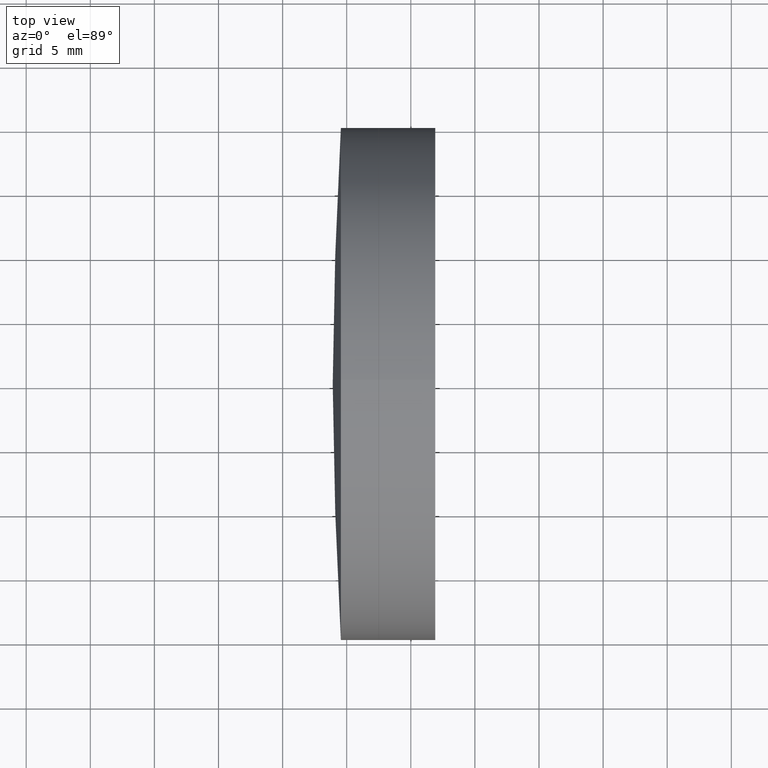
[diagram: clean part render]
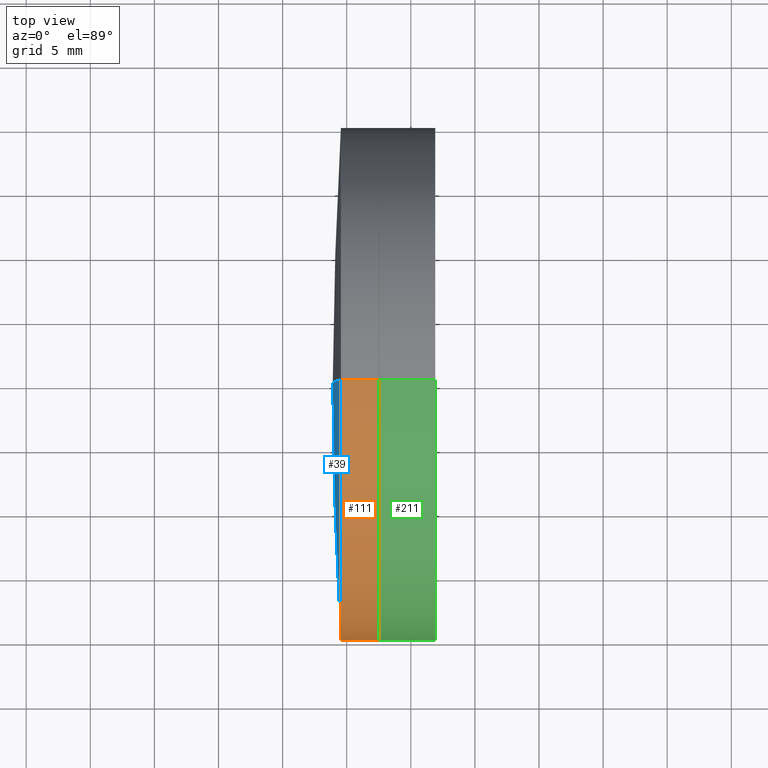
[diagram: same view with three faces highlighted in distinct colors, each labeled with its STEP entity id]
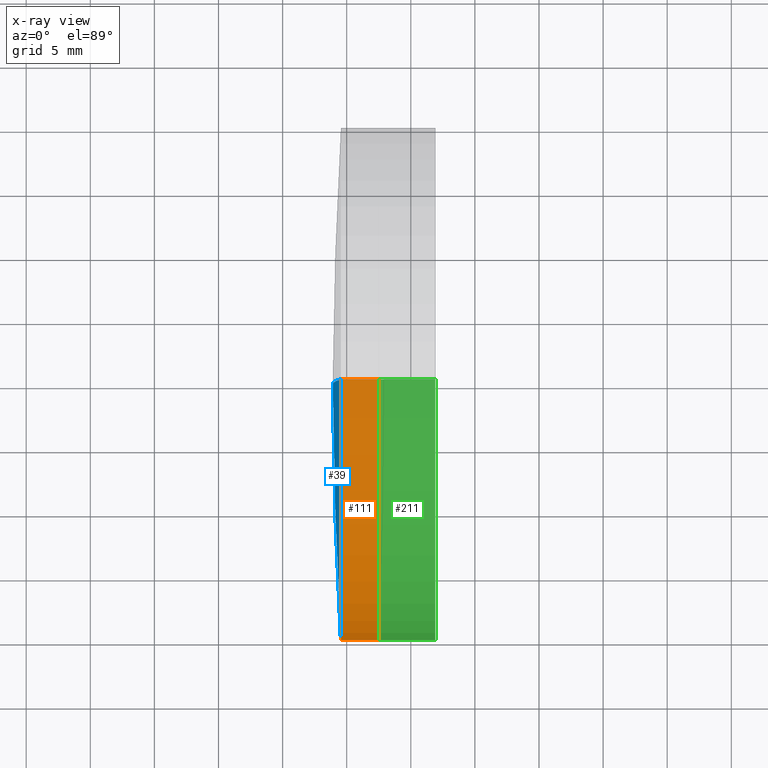
[diagram: x-ray of the same camera — body ghosted, the three highlighted faces saturated]
A machine part, top view with three faces highlighted in distinct colors.
The next image is the same camera in x-ray (body ghosted, the three faces saturated) — at least one of them is partly hidden behind the body in this view.
Their STEP definitions:

[orange] entity #111 — the highlighted cylindrical surface (partial cylindrical patch) has radius 20 mm, axis along (-1, -0, -0).
#2 = LINE ( 'NONE', #231, #249 ) ;
#3 = EDGE_CURVE ( 'NONE', #164, #226, #185, .T. ) ;
#24 = DIRECTION ( 'NONE',  ( 0.0000000000000000000, 0.0000000000000000000, 1.000000000000000000 ) ) ;
#52 = EDGE_CURVE ( 'NONE', #96, #226, #56, .T. ) ;
#56 = CIRCLE ( 'NONE', #318, 19.99999999999986100 ) ;
#59 = DIRECTION ( 'NONE',  ( -1.000000000000000000, -0.0000000000000000000, -0.0000000000000000000 ) ) ;
#60 = CARTESIAN_POINT ( 'NONE',  ( 657.5142120742816600, 0.0000000000000000000, 19.99999999999986500 ) ) ;
#63 = EDGE_CURVE ( 'NONE', #99, #96, #2, .T. ) ;
#68 = ORIENTED_EDGE ( 'NONE', *, *, #52, .F. ) ;
#75 = CARTESIAN_POINT ( 'NONE',  ( 654.5442827078192100, 0.0000000000000000000, 0.0000000000000000000 ) ) ;
#96 = VERTEX_POINT ( 'NONE', #307 ) ;
#99 = VERTEX_POINT ( 'NONE', #265 ) ;
#111 = ADVANCED_FACE ( 'NONE', ( #206 ), #218, .T. ) ;
#112 = DIRECTION ( 'NONE',  ( -1.000000000000000000, -0.0000000000000000000, -0.0000000000000000000 ) ) ;
#118 = CARTESIAN_POINT ( 'NONE',  ( 124.5233095260452400, 0.0000000000000000000, 0.0000000000000000000 ) ) ;
#121 = AXIS2_PLACEMENT_3D ( 'NONE', #118, #59, #175 ) ;
#140 = DIRECTION ( 'NONE',  ( 0.0000000000000000000, 0.0000000000000000000, 1.000000000000000000 ) ) ;
#147 = EDGE_CURVE ( 'NONE', #99, #164, #248, .T. ) ;
#160 = CARTESIAN_POINT ( 'NONE',  ( 657.5142120742816600, 0.0000000000000000000, 0.0000000000000000000 ) ) ;
#164 = VERTEX_POINT ( 'NONE', #60 ) ;
#166 = ORIENTED_EDGE ( 'NONE', *, *, #147, .T. ) ;
#173 = ORIENTED_EDGE ( 'NONE', *, *, #3, .T. ) ;
#175 = DIRECTION ( 'NONE',  ( 0.0000000000000000000, 0.0000000000000000000, 1.000000000000000000 ) ) ;
#185 = LINE ( 'NONE', #261, #221 ) ;
#191 = DIRECTION ( 'NONE',  ( -1.000000000000000000, -0.0000000000000000000, -0.0000000000000000000 ) ) ;
#206 = FACE_OUTER_BOUND ( 'NONE', #294, .T. ) ;
#213 = DIRECTION ( 'NONE',  ( -1.000000000000000000, -0.0000000000000000000, -0.0000000000000000000 ) ) ;
#218 = CYLINDRICAL_SURFACE ( 'NONE', #121, 19.99999999999986500 ) ;
#221 = VECTOR ( 'NONE', #112, 1000.000000000000000 ) ;
#226 = VERTEX_POINT ( 'NONE', #308 ) ;
#231 = CARTESIAN_POINT ( 'NONE',  ( 124.5233095260452400, 2.449293598294689900E-015, -19.99999999999986500 ) ) ;
#248 = CIRCLE ( 'NONE', #250, 19.99999999999986500 ) ;
#249 = VECTOR ( 'NONE', #213, 1000.000000000000000 ) ;
#250 = AXIS2_PLACEMENT_3D ( 'NONE', #160, #191, #24 ) ;
#261 = CARTESIAN_POINT ( 'NONE',  ( 124.5233095260452400, 0.0000000000000000000, 19.99999999999986500 ) ) ;
#265 = CARTESIAN_POINT ( 'NONE',  ( 657.5142120742816600, 2.449293598294689900E-015, -19.99999999999986500 ) ) ;
#294 = EDGE_LOOP ( 'NONE', ( #298, #166, #173, #68 ) ) ;
#298 = ORIENTED_EDGE ( 'NONE', *, *, #63, .F. ) ;
#307 = CARTESIAN_POINT ( 'NONE',  ( 654.5442827078192100, 2.449293598294685600E-015, -19.99999999999996400 ) ) ;
#308 = CARTESIAN_POINT ( 'NONE',  ( 654.5442827078192100, 0.0000000000000000000, 19.99999999999982900 ) ) ;
#313 = DIRECTION ( 'NONE',  ( -1.000000000000000000, -0.0000000000000000000, -0.0000000000000000000 ) ) ;
#318 = AXIS2_PLACEMENT_3D ( 'NONE', #75, #313, #140 ) ;

[blue] entity #39 — the highlighted spherical surface has radius 315.18 mm.
#14 = AXIS2_PLACEMENT_3D ( 'NONE', #284, #108, #310 ) ;
#39 = ADVANCED_FACE ( 'NONE', ( #283 ), #193, .T. ) ;
#52 = EDGE_CURVE ( 'NONE', #96, #226, #56, .T. ) ;
#56 = CIRCLE ( 'NONE', #318, 19.99999999999986100 ) ;
#72 = ORIENTED_EDGE ( 'NONE', *, *, #52, .T. ) ;
#75 = CARTESIAN_POINT ( 'NONE',  ( 654.5442827078192100, 0.0000000000000000000, 0.0000000000000000000 ) ) ;
#79 = ORIENTED_EDGE ( 'NONE', *, *, #94, .T. ) ;
#88 = EDGE_CURVE ( 'NONE', #96, #153, #171, .T. ) ;
#89 = DIRECTION ( 'NONE',  ( 0.0000000000000000000, 0.0000000000000000000, -1.000000000000000000 ) ) ;
#94 = EDGE_CURVE ( 'NONE', #226, #153, #123, .T. ) ;
#96 = VERTEX_POINT ( 'NONE', #307 ) ;
#108 = DIRECTION ( 'NONE',  ( 0.0000000000000000000, 1.000000000000000000, 0.0000000000000000000 ) ) ;
#123 = CIRCLE ( 'NONE', #299, 315.1800000000000600 ) ;
#140 = DIRECTION ( 'NONE',  ( 0.0000000000000000000, 0.0000000000000000000, 1.000000000000000000 ) ) ;
#153 = VERTEX_POINT ( 'NONE', #209 ) ;
#163 = ORIENTED_EDGE ( 'NONE', *, *, #88, .F. ) ;
#171 = CIRCLE ( 'NONE', #252, 315.1800000000000600 ) ;
#187 = DIRECTION ( 'NONE',  ( -0.0000000000000000000, 1.000000000000000000, 1.224646799147353200E-016 ) ) ;
#193 = SPHERICAL_SURFACE ( 'NONE', #14, 315.1800000000000600 ) ;
#209 = CARTESIAN_POINT ( 'NONE',  ( 653.9090846041468700, 0.0000000000000000000, -1.165465373686866100E-013 ) ) ;
#216 = CARTESIAN_POINT ( 'NONE',  ( 969.0890846041469300, 0.0000000000000000000, -1.358457462764497500E-013 ) ) ;
#226 = VERTEX_POINT ( 'NONE', #308 ) ;
#243 = DIRECTION ( 'NONE',  ( 0.0000000000000000000, -1.000000000000000000, 0.0000000000000000000 ) ) ;
#252 = AXIS2_PLACEMENT_3D ( 'NONE', #264, #187, #256 ) ;
#256 = DIRECTION ( 'NONE',  ( 0.0000000000000000000, -1.224646799147353200E-016, 1.000000000000000000 ) ) ;
#264 = CARTESIAN_POINT ( 'NONE',  ( 969.0890846041469300, 0.0000000000000000000, -1.358457462764497500E-013 ) ) ;
#270 = EDGE_LOOP ( 'NONE', ( #163, #72, #79 ) ) ;
#283 = FACE_OUTER_BOUND ( 'NONE', #270, .T. ) ;
#284 = CARTESIAN_POINT ( 'NONE',  ( 969.0890846041469300, 0.0000000000000000000, -1.358457462764497500E-013 ) ) ;
#299 = AXIS2_PLACEMENT_3D ( 'NONE', #216, #243, #89 ) ;
#307 = CARTESIAN_POINT ( 'NONE',  ( 654.5442827078192100, 2.449293598294685600E-015, -19.99999999999996400 ) ) ;
#308 = CARTESIAN_POINT ( 'NONE',  ( 654.5442827078192100, 0.0000000000000000000, 19.99999999999982900 ) ) ;
#310 = DIRECTION ( 'NONE',  ( 0.0000000000000000000, 0.0000000000000000000, 1.000000000000000000 ) ) ;
#313 = DIRECTION ( 'NONE',  ( -1.000000000000000000, -0.0000000000000000000, -0.0000000000000000000 ) ) ;
#318 = AXIS2_PLACEMENT_3D ( 'NONE', #75, #313, #140 ) ;

[green] entity #211 — the highlighted cylindrical surface (partial cylindrical patch) has radius 20 mm, axis along (-1, -0, -0).
#10 = VECTOR ( 'NONE', #281, 1000.000000000000000 ) ;
#11 = DIRECTION ( 'NONE',  ( -1.000000000000000000, -0.0000000000000000000, -0.0000000000000000000 ) ) ;
#16 = ORIENTED_EDGE ( 'NONE', *, *, #130, .F. ) ;
#35 = EDGE_LOOP ( 'NONE', ( #16, #321, #247, #146 ) ) ;
#42 = CIRCLE ( 'NONE', #104, 20.00000000000019500 ) ;
#49 = DIRECTION ( 'NONE',  ( 0.0000000000000000000, 0.0000000000000000000, 1.000000000000000000 ) ) ;
#53 = CARTESIAN_POINT ( 'NONE',  ( -0.5519199926577972300, 0.0000000000000000000, 20.00000000000019500 ) ) ;
#67 = VERTEX_POINT ( 'NONE', #315 ) ;
#90 = CARTESIAN_POINT ( 'NONE',  ( 657.5142120742816600, 2.449293598294727800E-015, -20.00000000000030900 ) ) ;
#91 = DIRECTION ( 'NONE',  ( -1.000000000000000000, -0.0000000000000000000, -0.0000000000000000000 ) ) ;
#92 = DIRECTION ( 'NONE',  ( -1.000000000000000000, -0.0000000000000000000, -0.0000000000000000000 ) ) ;
#101 = CARTESIAN_POINT ( 'NONE',  ( -0.5519199926577972300, 0.0000000000000000000, 0.0000000000000000000 ) ) ;
#104 = AXIS2_PLACEMENT_3D ( 'NONE', #219, #92, #301 ) ;
#113 = CARTESIAN_POINT ( 'NONE',  ( 661.9090846041468700, 0.0000000000000000000, 20.00000000000019500 ) ) ;
#116 = LINE ( 'NONE', #53, #275 ) ;
#120 = EDGE_CURVE ( 'NONE', #184, #290, #116, .T. ) ;
#122 = FACE_OUTER_BOUND ( 'NONE', #35, .T. ) ;
#130 = EDGE_CURVE ( 'NONE', #67, #198, #291, .T. ) ;
#132 = CARTESIAN_POINT ( 'NONE',  ( -0.5519199926577972300, 2.449293598294730200E-015, -20.00000000000019500 ) ) ;
#145 = CYLINDRICAL_SURFACE ( 'NONE', #238, 20.00000000000019500 ) ;
#146 = ORIENTED_EDGE ( 'NONE', *, *, #167, .F. ) ;
#151 = CARTESIAN_POINT ( 'NONE',  ( 661.9090846041468700, 0.0000000000000000000, 0.0000000000000000000 ) ) ;
#167 = EDGE_CURVE ( 'NONE', #198, #290, #42, .T. ) ;
#172 = DIRECTION ( 'NONE',  ( 0.0000000000000000000, 0.0000000000000000000, 1.000000000000000000 ) ) ;
#183 = DIRECTION ( 'NONE',  ( -1.000000000000000000, -0.0000000000000000000, -0.0000000000000000000 ) ) ;
#184 = VERTEX_POINT ( 'NONE', #113 ) ;
#198 = VERTEX_POINT ( 'NONE', #90 ) ;
#199 = AXIS2_PLACEMENT_3D ( 'NONE', #151, #11, #172 ) ;
#207 = CIRCLE ( 'NONE', #199, 20.00000000000019500 ) ;
#211 = ADVANCED_FACE ( 'NONE', ( #122 ), #145, .T. ) ;
#219 = CARTESIAN_POINT ( 'NONE',  ( 657.5142120742816600, 0.0000000000000000000, 0.0000000000000000000 ) ) ;
#238 = AXIS2_PLACEMENT_3D ( 'NONE', #101, #91, #49 ) ;
#247 = ORIENTED_EDGE ( 'NONE', *, *, #120, .T. ) ;
#254 = CARTESIAN_POINT ( 'NONE',  ( 657.5142120742816600, 0.0000000000000000000, 20.00000000000017400 ) ) ;
#272 = EDGE_CURVE ( 'NONE', #67, #184, #207, .T. ) ;
#275 = VECTOR ( 'NONE', #183, 1000.000000000000000 ) ;
#281 = DIRECTION ( 'NONE',  ( -1.000000000000000000, -0.0000000000000000000, -0.0000000000000000000 ) ) ;
#290 = VERTEX_POINT ( 'NONE', #254 ) ;
#291 = LINE ( 'NONE', #132, #10 ) ;
#301 = DIRECTION ( 'NONE',  ( 0.0000000000000000000, 0.0000000000000000000, 1.000000000000000000 ) ) ;
#315 = CARTESIAN_POINT ( 'NONE',  ( 661.9090846041468700, 2.449293598294730200E-015, -20.00000000000019500 ) ) ;
#321 = ORIENTED_EDGE ( 'NONE', *, *, #272, .T. ) ;